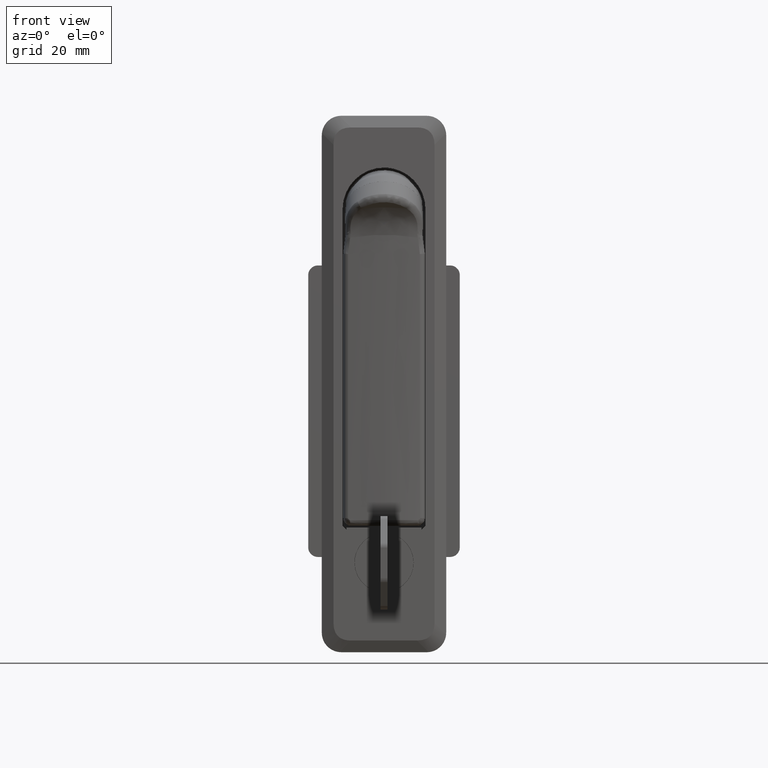
[diagram: clean part render]
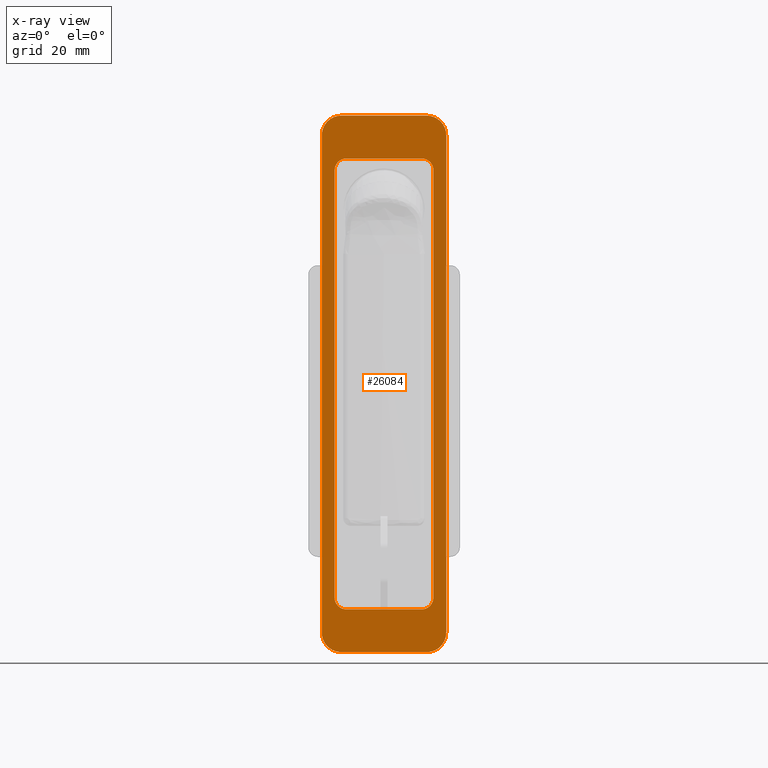
[diagram: x-ray — body ghosted, one internal face saturated and labeled with its STEP entity id]
A machine part, front view, then the same camera in x-ray: the body is ghosted and one INTERNAL B-rep face — a face not visible from any outside direction — is saturated and labeled: STEP entity #26084.
In plain terms, the highlighted face is a freeform B-spline surface patch.
Its self-contained STEP definition (entity closure, byte-faithful):
#25101=CARTESIAN_POINT('',(2.999999999999890,9.700000000000001,13.0));
#25102=VERTEX_POINT('',#25101);
#25109=CARTESIAN_POINT('',(2.999999999999890,12.699999999999999,10.0));
#25110=VERTEX_POINT('',#25109);
#25116=CARTESIAN_POINT('',(2.999999999999890,12.699999999999999,10.0));
#25117=CARTESIAN_POINT('',(2.999999999999890,12.700171118530371,10.319078215537980));
#25118=CARTESIAN_POINT('',(2.999999999999891,12.593312028571370,10.981703261058330));
#25119=CARTESIAN_POINT('',(2.999999999999888,12.159072409284430,11.794497163925559));
#25120=CARTESIAN_POINT('',(2.999999999999890,11.599248208699819,12.353903459935619));
#25121=CARTESIAN_POINT('',(2.999999999999897,11.015862497115229,12.723359176401891));
#25122=CARTESIAN_POINT('',(2.999999999999878,10.387219420721530,12.948305813619990));
#25123=CARTESIAN_POINT('',(2.999999999999889,9.920883585491167,13.000029557852541));
#25124=CARTESIAN_POINT('',(2.999999999999890,9.700000000000001,13.0));
#25125=B_SPLINE_CURVE_WITH_KNOTS('',3,(#25116,#25117,#25118,#25119,#25120,#25121,#25122,#25123,#25124),.UNSPECIFIED.,.F.,.U.,(4,1,1,1,1,1,4),(0.000000209639825,0.957219611403340,1.988127773776669,2.724383986567098,3.313481545967563,4.049836726834148,4.712507233014604),.UNSPECIFIED.);
#25126=EDGE_CURVE('',#25110,#25102,#25125,.T.);
#25138=CARTESIAN_POINT('',(2.999999999999890,12.699999999999999,-100.0));
#25139=VERTEX_POINT('',#25138);
#25145=CARTESIAN_POINT('',(2.999999999999890,12.699999999999999,-100.0));
#25146=CARTESIAN_POINT('',(2.999999999999890,12.699999999999999,10.0));
#25147=QUASI_UNIFORM_CURVE('',1,(#25145,#25146),.UNSPECIFIED.,.F.,.U.);
#25148=EDGE_CURVE('',#25139,#25110,#25147,.T.);
#25198=CARTESIAN_POINT('',(2.999999999999890,9.700000000000001,-103.0));
#25199=VERTEX_POINT('',#25198);
#25205=CARTESIAN_POINT('',(2.999999999999890,9.700000000000001,-103.0));
#25206=CARTESIAN_POINT('',(2.999999999999889,9.945436215989743,-103.000051956121600));
#25207=CARTESIAN_POINT('',(2.999999999999888,10.436295878108560,-102.939445148658390));
#25208=CARTESIAN_POINT('',(2.999999999999898,11.059247717355440,-102.699151627271600));
#25209=CARTESIAN_POINT('',(2.999999999999872,11.575450720649521,-102.363269023137510));
#25210=CARTESIAN_POINT('',(2.999999999999927,11.986269370604139,-101.972159850024700));
#25211=CARTESIAN_POINT('',(2.999999999999850,12.327076742361450,-101.488250347894090));
#25212=CARTESIAN_POINT('',(2.999999999999907,12.616950943169590,-100.834387713720300));
#25213=CARTESIAN_POINT('',(2.999999999999885,12.700190409838481,-100.319096239815810));
#25214=CARTESIAN_POINT('',(2.999999999999890,12.699999999999999,-100.0));
#25215=B_SPLINE_CURVE_WITH_KNOTS('',3,(#25205,#25206,#25207,#25208,#25209,#25210,#25211,#25212,#25213,#25214),.UNSPECIFIED.,.F.,.U.,(4,1,1,1,1,1,1,4),(0.000000209631042,0.736316671626672,1.472673998580555,1.988127773772514,2.577103512586437,3.166198513218721,3.755279474781642,4.712507233014598),.UNSPECIFIED.);
#25216=EDGE_CURVE('',#25199,#25139,#25215,.T.);
#25230=CARTESIAN_POINT('',(2.999999999999890,-9.700000000000001,-103.0));
#25231=VERTEX_POINT('',#25230);
#25237=CARTESIAN_POINT('',(2.999999999999890,-9.700000000000001,-103.0));
#25238=CARTESIAN_POINT('',(2.999999999999890,9.700000000000001,-103.0));
#25239=QUASI_UNIFORM_CURVE('',1,(#25237,#25238),.UNSPECIFIED.,.F.,.U.);
#25240=EDGE_CURVE('',#25231,#25199,#25239,.T.);
#25261=CARTESIAN_POINT('',(2.999999999999890,-12.699999999999999,-100.0));
#25262=VERTEX_POINT('',#25261);
#25268=CARTESIAN_POINT('',(2.999999999999890,-12.699999999999999,-100.0));
#25269=CARTESIAN_POINT('',(2.999999999999890,-12.700465202577311,-100.392798388430710));
#25270=CARTESIAN_POINT('',(2.999999999999891,-12.582540119865101,-100.981422339641700));
#25271=CARTESIAN_POINT('',(2.999999999999892,-12.152483348423891,-101.786303525953800));
#25272=CARTESIAN_POINT('',(2.999999999999883,-11.594189647856140,-102.387267048992600));
#25273=CARTESIAN_POINT('',(2.999999999999902,-10.730685750193331,-102.876466610276690));
#25274=CARTESIAN_POINT('',(2.999999999999877,-10.068180451898741,-103.000299830196200));
#25275=CARTESIAN_POINT('',(2.999999999999890,-9.700000000000001,-103.0));
#25276=B_SPLINE_CURVE_WITH_KNOTS('',3,(#25268,#25269,#25270,#25271,#25272,#25273,#25274,#25275),.UNSPECIFIED.,.F.,.U.,(4,1,1,1,1,4),(0.000000209644562,1.178129222820141,1.767197704742042,2.724383986569416,3.608017520641621,4.712507233014510),.UNSPECIFIED.);
#25277=EDGE_CURVE('',#25262,#25231,#25276,.T.);
#25319=CARTESIAN_POINT('',(2.999999999999890,-12.699999999999999,10.0));
#25320=VERTEX_POINT('',#25319);
#25326=CARTESIAN_POINT('',(2.999999999999890,-12.699999999999999,10.0));
#25327=CARTESIAN_POINT('',(2.999999999999890,-12.699999999999999,-100.0));
#25328=QUASI_UNIFORM_CURVE('',1,(#25326,#25327),.UNSPECIFIED.,.F.,.U.);
#25329=EDGE_CURVE('',#25320,#25262,#25328,.T.);
#25351=CARTESIAN_POINT('',(2.999999999999890,-9.700000000000001,13.0));
#25352=VERTEX_POINT('',#25351);
#25358=CARTESIAN_POINT('',(2.999999999999890,-9.700000000000001,13.0));
#25359=CARTESIAN_POINT('',(2.999999999999891,-10.019092392505319,13.000176259036269));
#25360=CARTESIAN_POINT('',(2.999999999999890,-10.509842257640569,12.920917472936161));
#25361=CARTESIAN_POINT('',(2.999999999999890,-11.166471874692840,12.639399351375260));
#25362=CARTESIAN_POINT('',(2.999999999999892,-11.695924923787100,12.276224256636310));
#25363=CARTESIAN_POINT('',(2.999999999999887,-12.144253947728039,11.781476006277479));
#25364=CARTESIAN_POINT('',(2.999999999999895,-12.569859047347769,11.030469202440459));
#25365=CARTESIAN_POINT('',(2.999999999999887,-12.700544211618549,10.417354892356380));
#25366=CARTESIAN_POINT('',(2.999999999999890,-12.699999999999999,10.0));
#25367=B_SPLINE_CURVE_WITH_KNOTS('',3,(#25358,#25359,#25360,#25361,#25362,#25363,#25364,#25365,#25366),.UNSPECIFIED.,.F.,.U.,(4,1,1,1,1,1,4),(0.000000209636041,0.957219611400596,1.472673998583641,2.135400574490415,2.871680025426058,3.460743500145846,4.712507233014628),.UNSPECIFIED.);
#25368=EDGE_CURVE('',#25352,#25320,#25367,.T.);
#25382=CARTESIAN_POINT('',(2.999999999999890,9.700000000000001,13.0));
#25383=CARTESIAN_POINT('',(2.999999999999890,-9.700000000000001,13.0));
#25384=QUASI_UNIFORM_CURVE('',1,(#25382,#25383),.UNSPECIFIED.,.F.,.U.);
#25385=EDGE_CURVE('',#25102,#25352,#25384,.T.);
#25750=CARTESIAN_POINT('',(2.999999999999915,16.0,-109.0));
#25751=VERTEX_POINT('',#25750);
#25757=CARTESIAN_POINT('',(2.999999999999915,11.0,-114.0));
#25758=VERTEX_POINT('',#25757);
#25759=CARTESIAN_POINT('',(2.999999999999915,11.0,-114.0));
#25760=CARTESIAN_POINT('',(2.999999999999916,11.511353255075569,-114.000224243167690));
#25761=CARTESIAN_POINT('',(2.999999999999921,12.308856344080240,-113.876535728059490));
#25762=CARTESIAN_POINT('',(2.999999999999912,13.503806147408930,-113.381625789568800));
#25763=CARTESIAN_POINT('',(2.999999999999923,14.509261878542681,-112.655017187033810));
#25764=CARTESIAN_POINT('',(2.999999999999906,15.321831290953430,-111.613511074088290));
#25765=CARTESIAN_POINT('',(2.999999999999932,15.863848238823129,-110.390675917219800));
#25766=CARTESIAN_POINT('',(2.999999999999906,16.000265707797340,-109.511353224993300));
#25767=CARTESIAN_POINT('',(2.999999999999915,16.0,-109.0));
#25768=B_SPLINE_CURVE_WITH_KNOTS('',3,(#25759,#25760,#25761,#25762,#25763,#25764,#25765,#25766,#25767),.UNSPECIFIED.,.F.,.U.,(4,1,1,1,1,1,4),(0.000000199407654,1.533979746201201,2.393038808525426,3.865716513141893,5.215551756035716,6.320053267887661,7.854030914395594),.UNSPECIFIED.);
#25769=EDGE_CURVE('',#25758,#25751,#25768,.T.);
#25812=CARTESIAN_POINT('',(2.999999999999915,-11.0,-114.0));
#25813=VERTEX_POINT('',#25812);
#25819=CARTESIAN_POINT('',(2.999999999999915,-16.0,-109.0));
#25820=VERTEX_POINT('',#25819);
#25821=CARTESIAN_POINT('',(2.999999999999915,-16.0,-109.0));
#25822=CARTESIAN_POINT('',(2.999999999999921,-16.000164351403079,-109.470429877690610));
#25823=CARTESIAN_POINT('',(2.999999999999908,-15.880755528361700,-110.308913941360500));
#25824=CARTESIAN_POINT('',(2.999999999999919,-15.368976066249980,-111.544730708034390));
#25825=CARTESIAN_POINT('',(2.999999999999928,-14.617883119240540,-112.532012977815300));
#25826=CARTESIAN_POINT('',(2.999999999999908,-13.693026017489560,-113.253492874946200));
#25827=CARTESIAN_POINT('',(2.999999999999918,-12.533651464532291,-113.828339837133100));
#25828=CARTESIAN_POINT('',(2.999999999999907,-11.613692013974360,-114.000574068778310));
#25829=CARTESIAN_POINT('',(2.999999999999915,-11.0,-114.0));
#25830=B_SPLINE_CURVE_WITH_KNOTS('',3,(#25821,#25822,#25823,#25824,#25825,#25826,#25827,#25828,#25829),.UNSPECIFIED.,.F.,.U.,(4,1,1,1,1,1,4),(0.000000199367824,1.411259403199206,2.515760499646586,3.988314212931000,5.092833224453793,6.013243538665924,7.854030914395789),.UNSPECIFIED.);
#25831=EDGE_CURVE('',#25820,#25813,#25830,.T.);
#25874=CARTESIAN_POINT('',(2.999999999999915,-16.0,19.0));
#25875=VERTEX_POINT('',#25874);
#25881=CARTESIAN_POINT('',(2.999999999999915,-11.0,24.0));
#25882=VERTEX_POINT('',#25881);
#25883=CARTESIAN_POINT('',(2.999999999999915,-11.0,24.0));
#25884=CARTESIAN_POINT('',(2.999999999999913,-11.613684415171040,24.000526430349201));
#25885=CARTESIAN_POINT('',(2.999999999999906,-12.533666520939020,23.828405567205440));
#25886=CARTESIAN_POINT('',(2.999999999999931,-13.564196329128560,23.317323026306660));
#25887=CARTESIAN_POINT('',(2.999999999999904,-14.265053158210900,22.817272679971069));
#25888=CARTESIAN_POINT('',(2.999999999999910,-14.977268417297820,22.105292907093371));
#25889=CARTESIAN_POINT('',(2.999999999999951,-15.551085117938539,21.173985835428471));
#25890=CARTESIAN_POINT('',(2.999999999999866,-15.918503308998449,20.083973225685732));
#25891=CARTESIAN_POINT('',(2.999999999999973,-16.000077929090740,19.388608119602090));
#25892=CARTESIAN_POINT('',(2.999999999999915,-16.0,19.0));
#25893=B_SPLINE_CURVE_WITH_KNOTS('',3,(#25883,#25884,#25885,#25886,#25887,#25888,#25889,#25890,#25891,#25892),.UNSPECIFIED.,.F.,.U.,(4,1,1,1,1,1,1,4),(0.000000199410105,1.840786930655048,2.761199967330525,3.436181768678742,4.417850016285435,5.767802929227070,6.688213243436027,7.854030914395604),.UNSPECIFIED.);
#25894=EDGE_CURVE('',#25882,#25875,#25893,.T.);
#25937=CARTESIAN_POINT('',(2.999999999999915,11.0,24.0));
#25938=VERTEX_POINT('',#25937);
#25944=CARTESIAN_POINT('',(2.999999999999915,16.0,19.0));
#25945=VERTEX_POINT('',#25944);
#25946=CARTESIAN_POINT('',(2.999999999999915,16.0,19.0));
#25947=CARTESIAN_POINT('',(2.999999999999913,16.000278065484451,19.511361397059840));
#25948=CARTESIAN_POINT('',(2.999999999999916,15.879680047237340,20.288410058767742));
#25949=CARTESIAN_POINT('',(2.999999999999921,15.477352433086519,21.276619009537590));
#25950=CARTESIAN_POINT('',(2.999999999999888,14.971292291525200,22.098112241527470));
#25951=CARTESIAN_POINT('',(2.999999999999958,14.331859461127779,22.769695437043801));
#25952=CARTESIAN_POINT('',(2.999999999999881,13.564186287596529,23.317302988377680));
#25953=CARTESIAN_POINT('',(2.999999999999918,12.533679656189721,23.828461683166971));
#25954=CARTESIAN_POINT('',(2.999999999999955,11.613671733023921,24.000472461734290));
#25955=CARTESIAN_POINT('',(2.999999999999915,11.0,24.0));
#25956=B_SPLINE_CURVE_WITH_KNOTS('',3,(#25946,#25947,#25948,#25949,#25950,#25951,#25952,#25953,#25954,#25955),.UNSPECIFIED.,.F.,.U.,(4,1,1,1,1,1,1,4),(0.000000199401534,1.533979746196973,2.331671151301217,3.190741274811397,4.417850016282571,5.092833224468503,6.013243538675626,7.854030914395622),.UNSPECIFIED.);
#25957=EDGE_CURVE('',#25945,#25938,#25956,.T.);
#26022=CARTESIAN_POINT('',(2.999999999999915,16.0,-109.0));
#26023=CARTESIAN_POINT('',(2.999999999999915,16.0,19.0));
#26024=QUASI_UNIFORM_CURVE('',1,(#26022,#26023),.UNSPECIFIED.,.F.,.U.);
#26025=EDGE_CURVE('',#25751,#25945,#26024,.T.);
#26036=CARTESIAN_POINT('',(2.999999999999915,-16.0,-109.0));
#26037=CARTESIAN_POINT('',(2.999999999999915,-16.0,19.0));
#26038=QUASI_UNIFORM_CURVE('',1,(#26036,#26037),.UNSPECIFIED.,.F.,.U.);
#26039=EDGE_CURVE('',#25820,#25875,#26038,.T.);
#26051=CARTESIAN_POINT('',(2.999999999999915,-17.598399937977788,-120.893099732529190));
#26052=CARTESIAN_POINT('',(2.999999999999915,-17.598399937977788,30.893103433977661));
#26053=CARTESIAN_POINT('',(2.999999999999915,17.598400796284679,-120.893099732529190));
#26054=CARTESIAN_POINT('',(2.999999999999915,17.598400796284679,30.893103433977661));
#26055=B_SPLINE_SURFACE_WITH_KNOTS('',1,1,((#26051,#26053),(#26052,#26054)),.UNSPECIFIED.,.F.,.F.,.U.,(2,2),(2,2),(0.0,151.786203166506910),(0.0,35.196800734262467),.UNSPECIFIED.);
#26056=ORIENTED_EDGE('',*,*,#26025,.T.);
#26057=ORIENTED_EDGE('',*,*,#25957,.T.);
#26058=CARTESIAN_POINT('',(2.999999999999915,-11.0,24.0));
#26059=CARTESIAN_POINT('',(2.999999999999915,11.0,24.0));
#26060=QUASI_UNIFORM_CURVE('',1,(#26058,#26059),.UNSPECIFIED.,.F.,.U.);
#26061=EDGE_CURVE('',#25882,#25938,#26060,.T.);
#26062=ORIENTED_EDGE('',*,*,#26061,.F.);
#26063=ORIENTED_EDGE('',*,*,#25894,.T.);
#26064=ORIENTED_EDGE('',*,*,#26039,.F.);
#26065=ORIENTED_EDGE('',*,*,#25831,.T.);
#26066=CARTESIAN_POINT('',(2.999999999999915,-11.0,-114.0));
#26067=CARTESIAN_POINT('',(2.999999999999915,11.0,-114.0));
#26068=QUASI_UNIFORM_CURVE('',1,(#26066,#26067),.UNSPECIFIED.,.F.,.U.);
#26069=EDGE_CURVE('',#25813,#25758,#26068,.T.);
#26070=ORIENTED_EDGE('',*,*,#26069,.T.);
#26071=ORIENTED_EDGE('',*,*,#25769,.T.);
#26072=EDGE_LOOP('',(#26056,#26057,#26062,#26063,#26064,#26065,#26070,#26071));
#26073=FACE_OUTER_BOUND('',#26072,.T.);
#26074=ORIENTED_EDGE('',*,*,#25368,.F.);
#26075=ORIENTED_EDGE('',*,*,#25385,.F.);
#26076=ORIENTED_EDGE('',*,*,#25126,.F.);
#26077=ORIENTED_EDGE('',*,*,#25148,.F.);
#26078=ORIENTED_EDGE('',*,*,#25216,.F.);
#26079=ORIENTED_EDGE('',*,*,#25240,.F.);
#26080=ORIENTED_EDGE('',*,*,#25277,.F.);
#26081=ORIENTED_EDGE('',*,*,#25329,.F.);
#26082=EDGE_LOOP('',(#26074,#26075,#26076,#26077,#26078,#26079,#26080,#26081));
#26083=FACE_BOUND('',#26082,.T.);
#26084=ADVANCED_FACE('',(#26073,#26083),#26055,.F.);